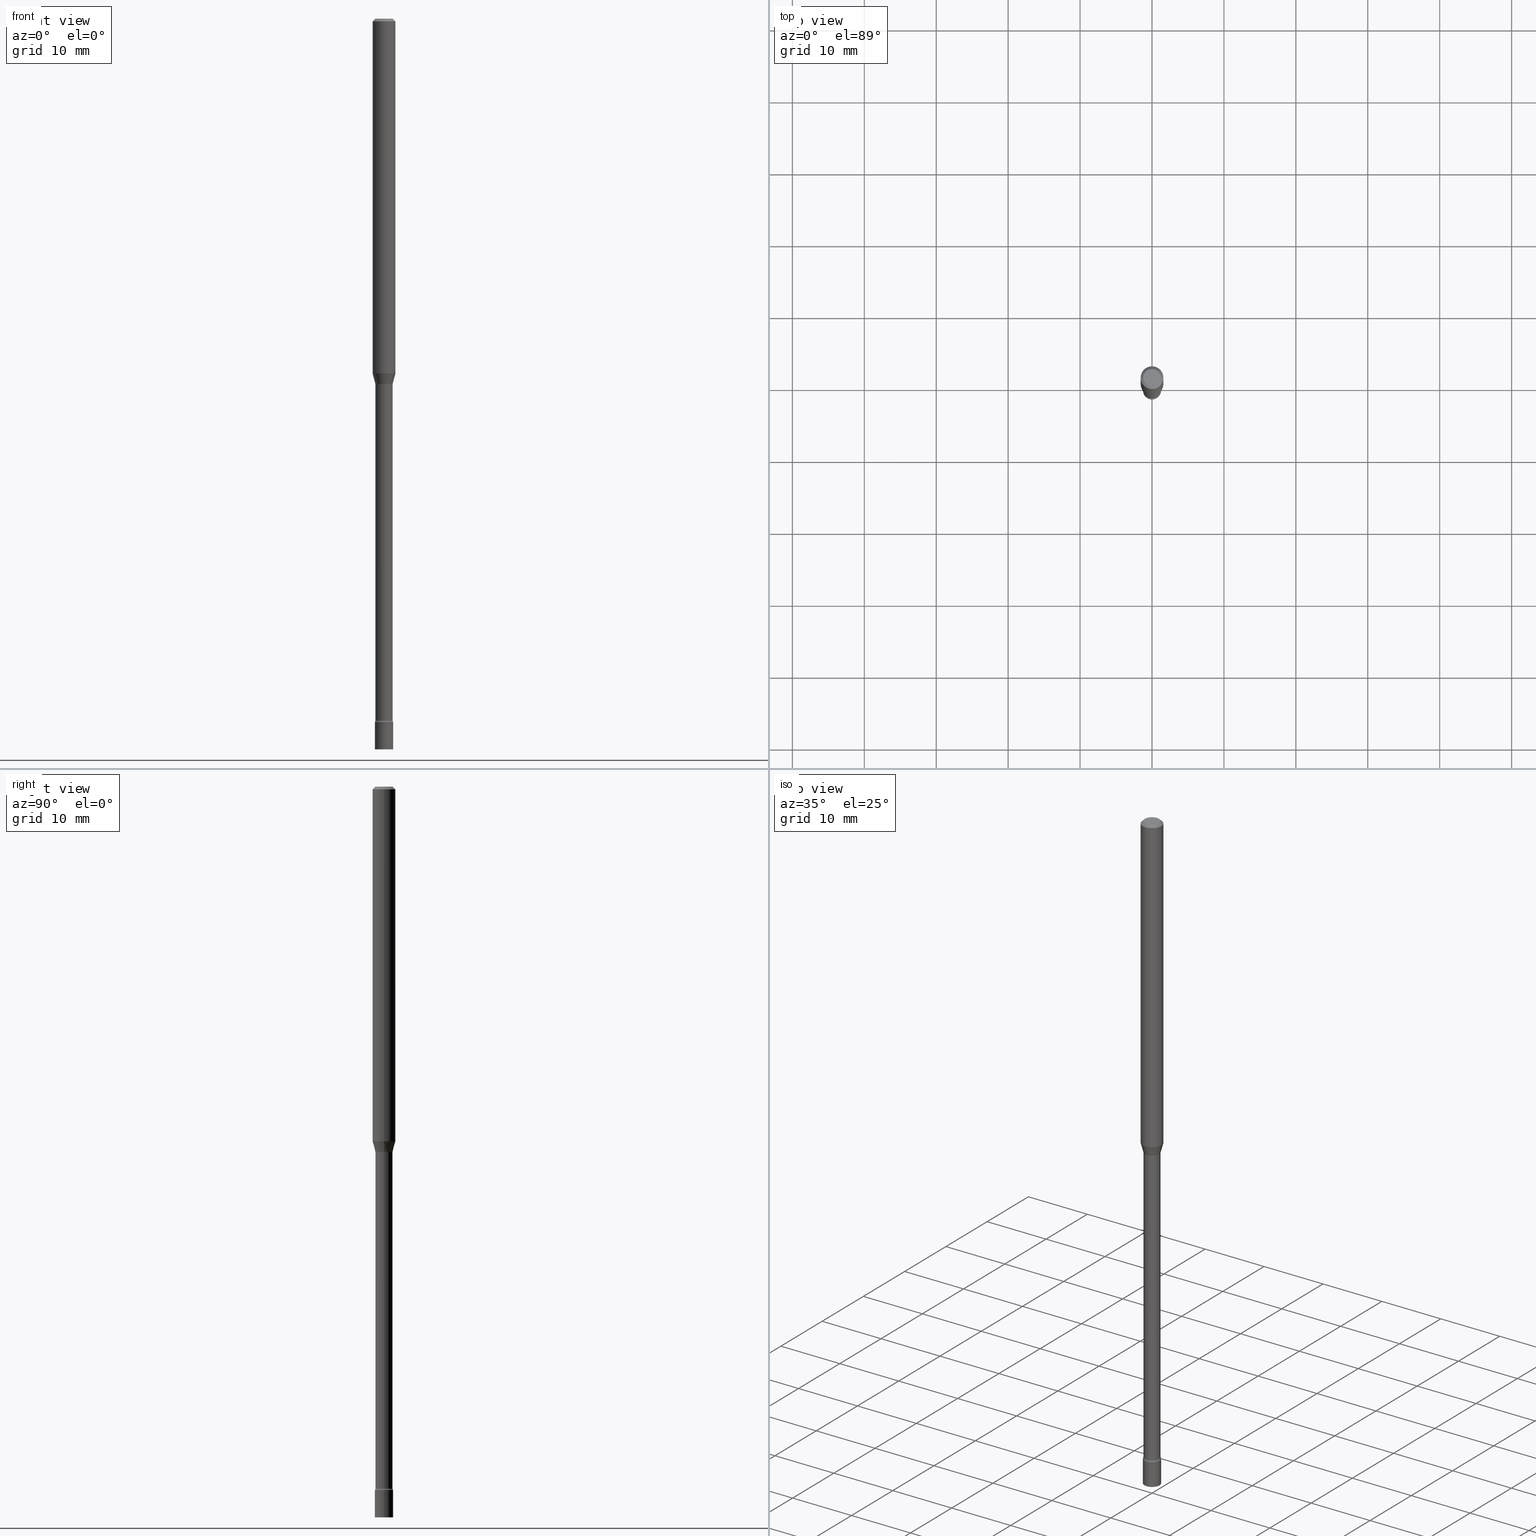
[diagram: canonical four-view strip — front | top / right | iso, engineering-drawing reading convention]
A machine part, canonical four-view strip (front | top / right | iso — engineering-drawing reading convention). The complete STEP part file that produces these views, byte-faithful:
ISO-10303-21;
HEADER;
FILE_DESCRIPTION (( 'STEP AP203' ),
    '1' );
FILE_NAME ('09758.STEP',
    '2024-03-09T01:44:52',
    ( '' ),
    ( '' ),
    'SwSTEP 2.0',
    'SolidWorks 2023',
    '' );
FILE_SCHEMA (( 'CONFIG_CONTROL_DESIGN' ));
ENDSEC;

DATA;
#1 = DIRECTION ( 'NONE',  ( 1.000000000000000000, -6.982962677686269077E-15, 0.000000000000000000 ) ) ;
#2 = CYLINDRICAL_SURFACE ( 'NONE', #110, 0.04700000000000017358 ) ;
#3 = ORIENTED_EDGE ( 'NONE', *, *, #217, .T. ) ;
#4 = EDGE_CURVE ( 'NONE', #424, #44, #321, .T. ) ;
#5 = CARTESIAN_POINT ( 'NONE',  ( 4.895766893511867445E-29, -6.989857611264368100E-15, -2.001974787463810745 ) ) ;
#6 = VERTEX_POINT ( 'NONE', #483 ) ;
#7 = AXIS2_PLACEMENT_3D ( 'NONE', #196, #78, #438 ) ;
#8 = VECTOR ( 'NONE', #337, 39.37007874015748143 ) ;
#9 = DIRECTION ( 'NONE',  ( 1.000000000000000000, -6.982962677686259611E-15, 0.000000000000000000 ) ) ;
#10 = VERTEX_POINT ( 'NONE', #76 ) ;
#11 = CARTESIAN_POINT ( 'NONE',  ( -0.04700000000000035399, -1.308187826167766793E-14, -3.841000000000001080 ) ) ;
#12 = ADVANCED_FACE ( 'NONE', ( #282 ), #412, .T. ) ;
#13 = FACE_OUTER_BOUND ( 'NONE', #16, .T. ) ;
#14 = CIRCLE ( 'NONE', #371, 0.04700000000000000705 ) ;
#15 = CIRCLE ( 'NONE', #34, 0.01499999999999987454 ) ;
#16 = EDGE_LOOP ( 'NONE', ( #199, #501, #350, #156 ) ) ;
#17 = DIRECTION ( 'NONE',  ( 1.000000000000000000, -6.982962677686267499E-15, 4.883557194083112901E-29 ) ) ;
#18 = ORIENTED_EDGE ( 'NONE', *, *, #359, .T. ) ;
#19 = ADVANCED_FACE ( 'NONE', ( #290 ), #499, .T. ) ;
#20 = DIRECTION ( 'NONE',  ( -2.445468806185136877E-29, 3.491481338843145188E-15, 1.000000000000000000 ) ) ;
#21 = VECTOR ( 'NONE', #152, 39.37007874015748143 ) ;
#22 = AXIS2_PLACEMENT_3D ( 'NONE', #208, #459, #89 ) ;
#23 = DATE_AND_TIME ( #57, #319 ) ;
#24 = PERSON_AND_ORGANIZATION ( #66, #380 ) ;
#25 = VECTOR ( 'NONE', #20, 39.37007874015748143 ) ;
#26 = ORIENTED_EDGE ( 'NONE', *, *, #308, .F. ) ;
#27 = AXIS2_PLACEMENT_3D ( 'NONE', #172, #292, #411 ) ;
#28 = ORIENTED_EDGE ( 'NONE', *, *, #314, .T. ) ;
#29 = CARTESIAN_POINT ( 'NONE',  ( -0.06250000000000000000, 4.440892098500626162E-16, -3.074334431409316114E-30 ) ) ;
#30 = CC_DESIGN_PERSON_AND_ORGANIZATION_ASSIGNMENT ( #257, #92, ( #157 ) ) ;
#31 = CARTESIAN_POINT ( 'NONE',  ( 9.415054903812776570E-29, -1.344220315454611233E-14, -3.850000000000000089 ) ) ;
#32 = CARTESIAN_POINT ( 'NONE',  ( 4.886272884993194703E-29, -6.976302683272677514E-15, -1.998092501787272823 ) ) ;
#33 = CIRCLE ( 'NONE', #395, 0.05000000000000000278 ) ;
#34 = AXIS2_PLACEMENT_3D ( 'NONE', #84, #403, #50 ) ;
#35 = FACE_OUTER_BOUND ( 'NONE', #494, .T. ) ;
#36 = CARTESIAN_POINT ( 'NONE',  ( -0.04751111260566399236, -6.638715923974330812E-15, -1.998092501787272823 ) ) ;
#37 = CARTESIAN_POINT ( 'NONE',  ( -0.06250000000000000000, 3.840629472727443437E-16, -0.01500000000000003067 ) ) ;
#38 = ORIENTED_EDGE ( 'NONE', *, *, #434, .T. ) ;
#39 = DIRECTION ( 'NONE',  ( -2.445468806185136597E-29, 3.491481338843145583E-15, 1.000000000000000000 ) ) ;
#40 = ORIENTED_EDGE ( 'NONE', *, *, #359, .F. ) ;
#41 = AXIS2_PLACEMENT_3D ( 'NONE', #458, #382, #91 ) ;
#42 = PRODUCT_DEFINITION_FORMATION_WITH_SPECIFIED_SOURCE ( 'ANY', '', #106, .NOT_KNOWN. ) ;
#43 = CARTESIAN_POINT ( 'NONE',  ( 0.06250000000000000000, -4.364351673553916694E-16, 3.047610484872459871E-30 ) ) ;
#44 = VERTEX_POINT ( 'NONE', #204 ) ;
#45 = DIRECTION ( 'NONE',  ( 1.000000000000000000, -6.982962677686269866E-15, 0.000000000000000000 ) ) ;
#46 = CC_DESIGN_PERSON_AND_ORGANIZATION_ASSIGNMENT ( #55, #470, ( #42 ) ) ;
#47 = CARTESIAN_POINT ( 'NONE',  ( 0.06250000000000000000, -4.888073874380389458E-16, -0.01500000000000003067 ) ) ;
#48 = DIRECTION ( 'NONE',  ( 1.000000000000000000, 0.000000000000000000, 0.000000000000000000 ) ) ;
#49 = AXIS2_PLACEMENT_3D ( 'NONE', #362, #390, #158 ) ;
#50 = DIRECTION ( 'NONE',  ( -1.000000000000000000, 7.105427357601050768E-15, 0.000000000000000000 ) ) ;
#51 = DIRECTION ( 'NONE',  ( 1.000000000000000000, -6.982962677686259611E-15, 4.883557194083110659E-29 ) ) ;
#52 = ORIENTED_EDGE ( 'NONE', *, *, #381, .T. ) ;
#53 = APPROVAL_STATUS ( 'not_yet_approved' ) ;
#54 = DIRECTION ( 'NONE',  ( -2.445468806185136877E-29, 3.491481338843145188E-15, 1.000000000000000000 ) ) ;
#55 = PERSON_AND_ORGANIZATION ( #66, #380 ) ;
#56 = AXIS2_PLACEMENT_3D ( 'NONE', #317, #444, #103 ) ;
#57 = CALENDAR_DATE ( 2024, 8, 3 ) ;
#58 = CARTESIAN_POINT ( 'NONE',  ( 0.04751111260566399236, -7.308071009373378853E-15, -1.998092501787272823 ) ) ;
#59 = CALENDAR_DATE ( 2024, 8, 3 ) ;
#60 = ORIENTED_EDGE ( 'NONE', *, *, #239, .F. ) ;
#61 = PERSON_AND_ORGANIZATION ( #66, #380 ) ;
#62 = CIRCLE ( 'NONE', #431, 0.04751111260566399236 ) ;
#63 = AXIS2_PLACEMENT_3D ( 'NONE', #361, #456, #116 ) ;
#64 = ORIENTED_EDGE ( 'NONE', *, *, #313, .F. ) ;
#65 = CC_DESIGN_DATE_AND_TIME_ASSIGNMENT ( #23, #139, ( #157 ) ) ;
#66 = PERSON ( 'UNSPECIFIED', 'UNSPECIFIED', 'UNSPECIFIED', ('UNSPECIFIED'), ('UNSPECIFIED'), ('UNSPECIFIED') ) ;
#67 = DIRECTION ( 'NONE',  ( 1.000000000000000000, -6.982962677686267499E-15, 4.876176775795935793E-29 ) ) ;
#68 = ORIENTED_EDGE ( 'NONE', *, *, #212, .T. ) ;
#69 = DIRECTION ( 'NONE',  ( 1.000000000000000000, -6.982962677686267499E-15, 4.876176775795936353E-29 ) ) ;
#70 = PLANE ( 'NONE',  #111 ) ;
#71 = ADVANCED_FACE ( 'NONE', ( #345 ), #428, .T. ) ;
#72 = ADVANCED_FACE ( 'NONE', ( #134 ), #447, .F. ) ;
#73 = CIRCLE ( 'NONE', #457, 0.06250000000000000000 ) ;
#74 = FACE_OUTER_BOUND ( 'NONE', #185, .T. ) ;
#75 = EDGE_LOOP ( 'NONE', ( #455, #288, #68, #60 ) ) ;
#76 = CARTESIAN_POINT ( 'NONE',  ( 0.05000000000000000278, -1.379135128843042409E-14, -3.850000000000000089 ) ) ;
#77 = DIRECTION ( 'NONE',  ( 1.000000000000000000, -6.982962677686262766E-15, 0.000000000000000000 ) ) ;
#78 = DIRECTION ( 'NONE',  ( -2.445468806185136597E-29, 3.491481338843145583E-15, 1.000000000000000000 ) ) ;
#79 = VERTEX_POINT ( 'NONE', #171 ) ;
#80 = CIRCLE ( 'NONE', #128, 0.04700000000000035399 ) ;
#81 = ADVANCED_FACE ( 'NONE', ( #127 ), #213, .T. ) ;
#82 = CARTESIAN_POINT ( 'NONE',  ( -0.05000000000000000278, -1.334879288707929850E-14, -4.000000000000000000 ) ) ;
#83 = DIRECTION ( 'NONE',  ( 1.000000000000000000, -6.982962677686265922E-15, 4.876176775795935793E-29 ) ) ;
#84 = CARTESIAN_POINT ( 'NONE',  ( -0.06200000000000023548, -1.297024332632526118E-14, -3.841000000000001080 ) ) ;
#85 = ORIENTED_EDGE ( 'NONE', *, *, #268, .T. ) ;
#86 = EDGE_CURVE ( 'NONE', #392, #263, #251, .T. ) ;
#87 = CARTESIAN_POINT ( 'NONE',  ( 4.895766893511867445E-29, -6.989857611264368100E-15, -2.001974787463810745 ) ) ;
#88 = AXIS2_PLACEMENT_3D ( 'NONE', #107, #275, #298 ) ;
#89 = DIRECTION ( 'NONE',  ( 1.000000000000000000, -6.982962677686267499E-15, 4.876176775795936353E-29 ) ) ;
#90 = ORIENTED_EDGE ( 'NONE', *, *, #4, .T. ) ;
#91 = DIRECTION ( 'NONE',  ( -1.000000000000000000, 6.982962677686265922E-15, -4.876176775795935793E-29 ) ) ;
#92 = PERSON_AND_ORGANIZATION_ROLE ( 'classification_officer' ) ;
#93 = DIRECTION ( 'NONE',  ( -1.000000000000000000, 6.982962677686266711E-15, 0.000000000000000000 ) ) ;
#94 = ADVANCED_FACE ( 'NONE', ( #175 ), #173, .T. ) ;
#95 = CONICAL_SURFACE ( 'NONE', #354, 0.06250000000000000000, 0.7853981633974483900 ) ;
#96 = ORIENTED_EDGE ( 'NONE', *, *, #148, .F. ) ;
#97 = SECURITY_CLASSIFICATION_LEVEL ( 'unclassified' ) ;
#98 = APPROVAL_ROLE ( '' ) ;
#99 = DIRECTION ( 'NONE',  ( 1.000000000000000000, -6.982962677686259611E-15, 4.883557194083110659E-29 ) ) ;
#100 = ADVANCED_FACE ( 'NONE', ( #145 ), #118, .T. ) ;
#101 = AXIS2_PLACEMENT_3D ( 'NONE', #454, #463, #99 ) ;
#102 = LOCAL_TIME ( 20, 44, 52.00000000000000000, #211 ) ;
#103 = DIRECTION ( 'NONE',  ( 1.000000000000000000, -6.982962677686267499E-15, 4.876176775795935793E-29 ) ) ;
#104 = DIRECTION ( 'NONE',  ( 1.000000000000000000, -6.982962677686269866E-15, 0.000000000000000000 ) ) ;
#105 = EDGE_CURVE ( 'NONE', #368, #10, #182, .T. ) ;
#106 = PRODUCT ( '09758', '09758', '', ( #125 ) ) ;
#107 = CARTESIAN_POINT ( 'NONE',  ( 9.415054903812776570E-29, -1.344220315454611233E-14, -3.850000000000000089 ) ) ;
#108 = CARTESIAN_POINT ( 'NONE',  ( -0.05000000000000000278, -1.334879288707929850E-14, -3.850000000000000089 ) ) ;
#109 = UNCERTAINTY_MEASURE_WITH_UNIT (LENGTH_MEASURE( 1.000000000000000082E-05 ), #500, 'distance_accuracy_value', 'NONE');
#110 = AXIS2_PLACEMENT_3D ( 'NONE', #269, #322, #67 ) ;
#111 = AXIS2_PLACEMENT_3D ( 'NONE', #228, #398, #192 ) ;
#112 = MANIFOLD_SOLID_BREP ( 'Body-Move/Copy2[1]', #511 ) ;
#113 = DIRECTION ( 'NONE',  ( -2.445468806185136597E-29, 3.491481338843145583E-15, 1.000000000000000000 ) ) ;
#114 = CARTESIAN_POINT ( 'NONE',  ( 0.04700000000000035399, -1.373897906834778213E-14, -3.841000000000001080 ) ) ;
#115 = CC_DESIGN_PERSON_AND_ORGANIZATION_ASSIGNMENT ( #505, #180, ( #425 ) ) ;
#116 = DIRECTION ( 'NONE',  ( -1.000000000000000000, 7.105427357600982137E-15, 0.000000000000000000 ) ) ;
#117 = EDGE_LOOP ( 'NONE', ( #399, #490 ) ) ;
#118 = CONICAL_SURFACE ( 'NONE', #338, 0.04751111260566399236, 0.2617993877991497409 ) ;
#119 = LOCAL_TIME ( 20, 44, 52.00000000000000000, #302 ) ;
#120 =( NAMED_UNIT ( * ) PLANE_ANGLE_UNIT ( ) SI_UNIT ( $, .RADIAN. ) );
#121 = ORIENTED_EDGE ( 'NONE', *, *, #313, .T. ) ;
#122 = CARTESIAN_POINT ( 'NONE',  ( -0.04749999999999999362, 3.578768372314209027E-16, -2.891391092787141902E-17 ) ) ;
#123 = ORIENTED_EDGE ( 'NONE', *, *, #267, .F. ) ;
#124 = EDGE_CURVE ( 'NONE', #266, #44, #404, .T. ) ;
#125 = MECHANICAL_CONTEXT ( 'NONE', #397, 'mechanical' ) ;
#126 = ORIENTED_EDGE ( 'NONE', *, *, #267, .T. ) ;
#127 = FACE_OUTER_BOUND ( 'NONE', #153, .T. ) ;
#128 = AXIS2_PLACEMENT_3D ( 'NONE', #177, #198, #469 ) ;
#129 = LINE ( 'NONE', #43, #495 ) ;
#130 = VECTOR ( 'NONE', #332, 39.37007874015748143 ) ;
#131 = EDGE_LOOP ( 'NONE', ( #482, #471, #376, #3 ) ) ;
#132 = DIRECTION ( 'NONE',  ( 2.445468806185136597E-29, -3.491481338843145583E-15, -1.000000000000000000 ) ) ;
#133 = APPROVAL_DATE_TIME ( #254, #304 ) ;
#134 = FACE_OUTER_BOUND ( 'NONE', #289, .T. ) ;
#135 = ADVANCED_FACE ( 'NONE', ( #439 ), #384, .F. ) ;
#136 = PERSON_AND_ORGANIZATION ( #66, #380 ) ;
#137 = CALENDAR_DATE ( 2024, 8, 3 ) ;
#138 = AXIS2_PLACEMENT_3D ( 'NONE', #234, #360, #9 ) ;
#139 = DATE_TIME_ROLE ( 'classification_date' ) ;
#140 = ADVANCED_FACE ( 'NONE', ( #249 ), #307, .T. ) ;
#141 = DIRECTION ( 'NONE',  ( 2.445468806185136597E-29, -3.491481338843145583E-15, -1.000000000000000000 ) ) ;
#142 = PERSON_AND_ORGANIZATION ( #66, #380 ) ;
#143 = DIRECTION ( 'NONE',  ( -1.000000000000000000, 6.982962677686266711E-15, 0.000000000000000000 ) ) ;
#144 = EDGE_LOOP ( 'NONE', ( #183, #226, #209, #40 ) ) ;
#145 = FACE_OUTER_BOUND ( 'NONE', #448, .T. ) ;
#146 = CARTESIAN_POINT ( 'NONE',  ( 9.781875224740546387E-29, -1.396592535537258233E-14, -4.000000000000000000 ) ) ;
#147 = ORIENTED_EDGE ( 'NONE', *, *, #224, .F. ) ;
#148 = EDGE_CURVE ( 'NONE', #392, #327, #80, .T. ) ;
#149 = DIRECTION ( 'NONE',  ( -6.982962677686266711E-15, -1.000000000000000000, 3.491481338843145583E-15 ) ) ;
#150 = EDGE_LOOP ( 'NONE', ( #96, #38, #121, #232 ) ) ;
#151 = CARTESIAN_POINT ( 'NONE',  ( 3.668203209277712094E-31, -5.237222008264728876E-17, -0.01500000000000003067 ) ) ;
#152 = DIRECTION ( 'NONE',  ( -2.445468806185136877E-29, 3.491481338843145188E-15, 1.000000000000000000 ) ) ;
#153 = EDGE_LOOP ( 'NONE', ( #123, #323 ) ) ;
#154 = CARTESIAN_POINT ( 'NONE',  ( 7.070806723891919892E-46, -1.009523804376275404E-31, -2.891391092786900929E-17 ) ) ;
#155 = AXIS2_PLACEMENT_3D ( 'NONE', #356, #520, #77 ) ;
#156 = ORIENTED_EDGE ( 'NONE', *, *, #105, .F. ) ;
#157 = SECURITY_CLASSIFICATION ( '', '', #97 ) ;
#158 = DIRECTION ( 'NONE',  ( 1.000000000000000000, -6.982962677686259611E-15, 0.000000000000000000 ) ) ;
#159 = VERTEX_POINT ( 'NONE', #227 ) ;
#160 = ADVANCED_FACE ( 'NONE', ( #394 ), #278, .F. ) ;
#161 = ORIENTED_EDGE ( 'NONE', *, *, #405, .F. ) ;
#162 = LINE ( 'NONE', #375, #8 ) ;
#163 = ORIENTED_EDGE ( 'NONE', *, *, #308, .T. ) ;
#164 = LENGTH_MEASURE_WITH_UNIT ( LENGTH_MEASURE( 0.02539999999999999897 ), #325 );
#165 = EDGE_CURVE ( 'NONE', #327, #346, #374, .T. ) ;
#166 = CIRCLE ( 'NONE', #364, 0.04751111260566399236 ) ;
#167 = CARTESIAN_POINT ( 'NONE',  ( 0.000000000000000000, 0.000000000000000000, 0.000000000000000000 ) ) ;
#168 = VERTEX_POINT ( 'NONE', #47 ) ;
#169 = DIRECTION ( 'NONE',  ( 1.000000000000000000, -6.982962677686269077E-15, 0.000000000000000000 ) ) ;
#170 = CARTESIAN_POINT ( 'NONE',  ( -0.04751111260566399236, -6.487809206340909859E-15, -1.998092501787272823 ) ) ;
#171 = CARTESIAN_POINT ( 'NONE',  ( -0.06250000000000000000, -2.972592749470036882E-15, -0.01500000000000003067 ) ) ;
#172 = CARTESIAN_POINT ( 'NONE',  ( 4.895766893511867445E-29, -6.989857611264368100E-15, -2.001974787463810745 ) ) ;
#173 = CYLINDRICAL_SURFACE ( 'NONE', #246, 0.05000000000000000278 ) ;
#174 = APPROVAL_PERSON_ORGANIZATION ( #142, #391, #301 ) ;
#175 = FACE_OUTER_BOUND ( 'NONE', #409, .T. ) ;
#176 = EDGE_CURVE ( 'NONE', #10, #368, #189, .T. ) ;
#177 = CARTESIAN_POINT ( 'NONE',  ( 9.393045684557111749E-29, -1.341077982249652526E-14, -3.841000000000001080 ) ) ;
#178 = DIRECTION ( 'NONE',  ( -2.445468806185136597E-29, 3.491481338843145583E-15, 1.000000000000000000 ) ) ;
#179 = AXIS2_PLACEMENT_3D ( 'NONE', #206, #324, #169 ) ;
#180 = PERSON_AND_ORGANIZATION_ROLE ( 'creator' ) ;
#181 = AXIS2_PLACEMENT_3D ( 'NONE', #331, #333, #83 ) ;
#182 = CIRCLE ( 'NONE', #363, 0.05000000000000000278 ) ;
#183 = ORIENTED_EDGE ( 'NONE', *, *, #334, .F. ) ;
#184 = DIRECTION ( 'NONE',  ( -2.445468806185136597E-29, 3.491481338843145583E-15, 1.000000000000000000 ) ) ;
#185 = EDGE_LOOP ( 'NONE', ( #328, #64 ) ) ;
#186 = DIRECTION ( 'NONE',  ( -2.445468806185136877E-29, 3.491481338843145188E-15, 1.000000000000000000 ) ) ;
#187 = EDGE_LOOP ( 'NONE', ( #28, #435, #489, #243 ) ) ;
#188 = DIRECTION ( 'NONE',  ( 1.000000000000000000, -6.982962677686269077E-15, 0.000000000000000000 ) ) ;
#189 = CIRCLE ( 'NONE', #493, 0.05000000000000000278 ) ;
#190 = CARTESIAN_POINT ( 'NONE',  ( 4.749475097958652803E-29, -6.780991698557551523E-15, -1.942153212482682134 ) ) ;
#191 = CARTESIAN_POINT ( 'NONE',  ( 3.668203209277712094E-31, -5.237222008264728876E-17, -0.01500000000000003067 ) ) ;
#192 = DIRECTION ( 'NONE',  ( 1.000000000000000000, -6.982962677686265922E-15, 4.876176775795935793E-29 ) ) ;
#193 = DIRECTION ( 'NONE',  ( -0.2588190451025210725, 5.211531920934548675E-15, 0.9659258262890682012 ) ) ;
#194 = DIRECTION ( 'NONE',  ( -0.7071067811865475727, 2.468850131082257455E-15, -0.7071067811865474617 ) ) ;
#195 = PRODUCT_DEFINITION_SHAPE ( 'NONE', 'NONE',  #425 ) ;
#196 = CARTESIAN_POINT ( 'NONE',  ( 9.415054903812776570E-29, -1.344220315454611233E-14, -3.850000000000000089 ) ) ;
#197 = ADVANCED_FACE ( 'NONE', ( #437 ), #421, .T. ) ;
#198 = DIRECTION ( 'NONE',  ( -2.445468806185136597E-29, 3.491481338843145583E-15, 1.000000000000000000 ) ) ;
#199 = ORIENTED_EDGE ( 'NONE', *, *, #504, .F. ) ;
#200 = AXIS2_PLACEMENT_3D ( 'NONE', #402, #149, #388 ) ;
#201 = FACE_OUTER_BOUND ( 'NONE', #519, .T. ) ;
#202 = CYLINDRICAL_SURFACE ( 'NONE', #22, 0.05000000000000000278 ) ;
#203 = ADVANCED_FACE ( 'NONE', ( #219 ), #95, .T. ) ;
#204 = CARTESIAN_POINT ( 'NONE',  ( -0.06250000000000000000, -6.336902488707488907E-15, -1.942153212482682134 ) ) ;
#205 = CLOSED_SHELL ( 'NONE', ( #72, #241, #135, #203, #140, #100, #12, #71, #197, #507, #351, #160, #326, #443 ) ) ;
#206 = CARTESIAN_POINT ( 'NONE',  ( 4.886272884993194703E-29, -6.976302683272677514E-15, -1.998092501787272823 ) ) ;
#207 = AXIS2_PLACEMENT_3D ( 'NONE', #154, #441, #283 ) ;
#208 = CARTESIAN_POINT ( 'NONE',  ( 0.000000000000000000, 0.000000000000000000, 0.000000000000000000 ) ) ;
#209 = ORIENTED_EDGE ( 'NONE', *, *, #452, .T. ) ;
#210 = CARTESIAN_POINT ( 'NONE',  ( -0.04700000000000017358, 3.339550858072483207E-16, -2.311899492419814478E-30 ) ) ;
#211 = COORDINATED_UNIVERSAL_TIME_OFFSET ( 5, 0, .BEHIND. ) ;
#212 = EDGE_CURVE ( 'NONE', #159, #266, #261, .T. ) ;
#213 = PLANE ( 'NONE',  #41 ) ;
#214 = CALENDAR_DATE ( 2024, 8, 3 ) ;
#215 = PERSON_AND_ORGANIZATION_ROLE ( 'design_supplier' ) ;
#216 = VERTEX_POINT ( 'NONE', #82 ) ;
#217 = EDGE_CURVE ( 'NONE', #445, #336, #245, .T. ) ;
#218 = APPROVAL_STATUS ( 'not_yet_approved' ) ;
#219 = FACE_OUTER_BOUND ( 'NONE', #297, .T. ) ;
#220 = ORIENTED_EDGE ( 'NONE', *, *, #381, .F. ) ;
#221 = DATE_AND_TIME ( #137, #119 ) ;
#222 = AXIS2_PLACEMENT_3D ( 'NONE', #353, #377, #464 ) ;
#223 = TOROIDAL_SURFACE ( 'NONE', #27, 0.06200000000000000649, 0.01500000000000001853 ) ;
#224 = EDGE_CURVE ( 'NONE', #432, #303, #236, .T. ) ;
#225 = CARTESIAN_POINT ( 'NONE',  ( -0.04999999999999992645, -1.308693178666606192E-14, -3.850000000000000089 ) ) ;
#226 = ORIENTED_EDGE ( 'NONE', *, *, #239, .T. ) ;
#227 = CARTESIAN_POINT ( 'NONE',  ( 0.04751111260566399236, -7.308071009373378853E-15, -1.998092501787272823 ) ) ;
#228 = CARTESIAN_POINT ( 'NONE',  ( 3.491481338844074565E-16, 0.04999999999998656214, -3.850000000000000089 ) ) ;
#229 = CIRCLE ( 'NONE', #200, 0.01499999999999987454 ) ;
#230 = AXIS2_PLACEMENT_3D ( 'NONE', #367, #446, #291 ) ;
#231 = DIRECTION ( 'NONE',  ( 1.000000000000000000, -6.982962677686254878E-15, 0.000000000000000000 ) ) ;
#232 = ORIENTED_EDGE ( 'NONE', *, *, #252, .F. ) ;
#233 = EDGE_CURVE ( 'NONE', #6, #10, #497, .T. ) ;
#234 = CARTESIAN_POINT ( 'NONE',  ( 0.06200000000000000649, -7.422801297280916762E-15, -2.001974787463810745 ) ) ;
#235 = LINE ( 'NONE', #248, #130 ) ;
#236 = CIRCLE ( 'NONE', #466, 0.04749999999999999362 ) ;
#237 = CIRCLE ( 'NONE', #63, 0.01500000000000001853 ) ;
#238 = PLANE ( 'NONE',  #230 ) ;
#239 = EDGE_CURVE ( 'NONE', #44, #266, #256, .T. ) ;
#240 = EDGE_CURVE ( 'NONE', #168, #79, #73, .T. ) ;
#241 = ADVANCED_FACE ( 'NONE', ( #475 ), #488, .T. ) ;
#242 = APPLICATION_PROTOCOL_DEFINITION ( 'international standard', 'config_control_design', 1994, #397 ) ;
#243 = ORIENTED_EDGE ( 'NONE', *, *, #165, .F. ) ;
#244 = DIRECTION ( 'NONE',  ( -2.445468806185136597E-29, 3.491481338843145583E-15, 1.000000000000000000 ) ) ;
#245 = CIRCLE ( 'NONE', #88, 0.05000000000000000278 ) ;
#246 = AXIS2_PLACEMENT_3D ( 'NONE', #503, #178, #69 ) ;
#247 = AXIS2_PLACEMENT_3D ( 'NONE', #151, #315, #481 ) ;
#248 = CARTESIAN_POINT ( 'NONE',  ( -0.05000000000000000278, 3.552713678800501127E-16, -2.459467545127453311E-30 ) ) ;
#249 = FACE_OUTER_BOUND ( 'NONE', #510, .T. ) ;
#250 = ORIENTED_EDGE ( 'NONE', *, *, #452, .F. ) ;
#251 = LINE ( 'NONE', #210, #25 ) ;
#252 = EDGE_CURVE ( 'NONE', #327, #445, #229, .T. ) ;
#253 = EDGE_CURVE ( 'NONE', #346, #263, #14, .T. ) ;
#254 = DATE_AND_TIME ( #515, #265 ) ;
#255 = PERSON_AND_ORGANIZATION ( #66, #380 ) ;
#256 = CIRCLE ( 'NONE', #155, 0.06250000000000000000 ) ;
#257 = PERSON_AND_ORGANIZATION ( #66, #380 ) ;
#258 = CC_DESIGN_APPROVAL ( #304, ( #425 ) ) ;
#259 = CARTESIAN_POINT ( 'NONE',  ( 3.668203209277712094E-31, -5.237222008264728876E-17, -0.01500000000000003067 ) ) ;
#260 = PRODUCT_RELATED_PRODUCT_CATEGORY ( 'detail', '', ( #106 ) ) ;
#261 = LINE ( 'NONE', #58, #287 ) ;
#262 = ORIENTED_EDGE ( 'NONE', *, *, #334, .T. ) ;
#263 = VERTEX_POINT ( 'NONE', #486 ) ;
#264 = CIRCLE ( 'NONE', #138, 0.01500000000000001853 ) ;
#265 = LOCAL_TIME ( 20, 44, 52.00000000000000000, #296 ) ;
#266 = VERTEX_POINT ( 'NONE', #276 ) ;
#267 = EDGE_CURVE ( 'NONE', #6, #216, #33, .T. ) ;
#268 = EDGE_CURVE ( 'NONE', #159, #346, #264, .T. ) ;
#269 = CARTESIAN_POINT ( 'NONE',  ( 0.000000000000000000, 0.000000000000000000, 0.000000000000000000 ) ) ;
#270 = ORIENTED_EDGE ( 'NONE', *, *, #148, .T. ) ;
#271 = DIRECTION ( 'NONE',  ( -2.445468806185136597E-29, 3.491481338843145583E-15, 1.000000000000000000 ) ) ;
#272 = DIRECTION ( 'NONE',  ( -2.445468806185136597E-29, 3.491481338843145583E-15, 1.000000000000000000 ) ) ;
#273 = ORIENTED_EDGE ( 'NONE', *, *, #342, .F. ) ;
#274 = DIRECTION ( 'NONE',  ( 1.000000000000000000, -6.982962677686262766E-15, 0.000000000000000000 ) ) ;
#275 = DIRECTION ( 'NONE',  ( -2.445468806185136597E-29, 3.491481338843145583E-15, 1.000000000000000000 ) ) ;
#276 = CARTESIAN_POINT ( 'NONE',  ( 0.06250000000000000000, -7.217426865912943982E-15, -1.942153212482682134 ) ) ;
#277 = EDGE_CURVE ( 'NONE', #216, #6, #414, .T. ) ;
#278 = TOROIDAL_SURFACE ( 'NONE', #430, 0.06200000000000023548, 0.01499999999999987975 ) ;
#279 = CIRCLE ( 'NONE', #247, 0.06250000000000000000 ) ;
#280 = DIRECTION ( 'NONE',  ( -2.445468806185136597E-29, 3.491481338843145583E-15, 1.000000000000000000 ) ) ;
#281 = ORIENTED_EDGE ( 'NONE', *, *, #176, .F. ) ;
#282 = FACE_OUTER_BOUND ( 'NONE', #75, .T. ) ;
#283 = DIRECTION ( 'NONE',  ( 1.000000000000000000, -6.982962677686267499E-15, 4.876681293081646444E-29 ) ) ;
#284 = DIRECTION ( 'NONE',  ( 1.000000000000000000, -6.982962677686269077E-15, 0.000000000000000000 ) ) ;
#285 = ORIENTED_EDGE ( 'NONE', *, *, #509, .F. ) ;
#286 = CARTESIAN_POINT ( 'NONE',  ( 9.393045684557111749E-29, -1.341077982249652526E-14, -3.841000000000001080 ) ) ;
#287 = VECTOR ( 'NONE', #450, 39.37007874015748143 ) ;
#288 = ORIENTED_EDGE ( 'NONE', *, *, #342, .T. ) ;
#289 = EDGE_LOOP ( 'NONE', ( #273, #52, #293, #514 ) ) ;
#290 = FACE_OUTER_BOUND ( 'NONE', #117, .T. ) ;
#291 = DIRECTION ( 'NONE',  ( -1.000000000000000000, 6.982962677686265922E-15, -4.876176775795935793E-29 ) ) ;
#292 = DIRECTION ( 'NONE',  ( -2.445468806185136597E-29, 3.491481338843145583E-15, 1.000000000000000000 ) ) ;
#293 = ORIENTED_EDGE ( 'NONE', *, *, #460, .T. ) ;
#294 = CIRCLE ( 'NONE', #49, 0.04700000000000035399 ) ;
#295 = DIRECTION ( 'NONE',  ( -2.445468806185136597E-29, 3.491481338843145583E-15, 1.000000000000000000 ) ) ;
#296 = COORDINATED_UNIVERSAL_TIME_OFFSET ( 5, 0, .BEHIND. ) ;
#297 = EDGE_LOOP ( 'NONE', ( #26, #373, #316, #370 ) ) ;
#298 = DIRECTION ( 'NONE',  ( 1.000000000000000000, -6.982962677686254878E-15, 0.000000000000000000 ) ) ;
#299 = DIMENSIONAL_EXPONENTS ( 1.000000000000000000, 0.000000000000000000, 0.000000000000000000, 0.000000000000000000, 0.000000000000000000, 0.000000000000000000, 0.000000000000000000 ) ;
#300 = AXIS2_PLACEMENT_3D ( 'NONE', #190, #479, #274 ) ;
#301 = APPROVAL_ROLE ( '' ) ;
#302 = COORDINATED_UNIVERSAL_TIME_OFFSET ( 5, 0, .BEHIND. ) ;
#303 = VERTEX_POINT ( 'NONE', #440 ) ;
#304 = APPROVAL ( #53, 'UNSPECIFIED' ) ;
#305 = CC_DESIGN_APPROVAL ( #386, ( #157 ) ) ;
#306 = DIRECTION ( 'NONE',  ( 1.000000000000000000, -6.982962677686254878E-15, 0.000000000000000000 ) ) ;
#307 = CYLINDRICAL_SURFACE ( 'NONE', #318, 0.06250000000000000000 ) ;
#308 = EDGE_CURVE ( 'NONE', #303, #432, #329, .T. ) ;
#309 = CARTESIAN_POINT ( 'NONE',  ( 9.781875224740546387E-29, -1.396592535537258233E-14, -4.000000000000000000 ) ) ;
#310 = EDGE_LOOP ( 'NONE', ( #220, #161, #85, #472 ) ) ;
#311 = DIRECTION ( 'NONE',  ( 1.000000000000000000, -6.982962677686254878E-15, 0.000000000000000000 ) ) ;
#312 = CARTESIAN_POINT ( 'NONE',  ( 9.415054903812776570E-29, -1.344220315454611233E-14, -3.850000000000000089 ) ) ;
#313 = EDGE_CURVE ( 'NONE', #336, #445, #512, .T. ) ;
#314 = EDGE_CURVE ( 'NONE', #327, #392, #294, .T. ) ;
#315 = DIRECTION ( 'NONE',  ( -2.445468806185136597E-29, 3.491481338843145583E-15, 1.000000000000000000 ) ) ;
#316 = ORIENTED_EDGE ( 'NONE', *, *, #240, .T. ) ;
#317 = CARTESIAN_POINT ( 'NONE',  ( 0.000000000000000000, 0.000000000000000000, 0.000000000000000000 ) ) ;
#318 = AXIS2_PLACEMENT_3D ( 'NONE', #476, #427, #506 ) ;
#319 = LOCAL_TIME ( 20, 44, 52.00000000000000000, #418 ) ;
#320 = ORIENTED_EDGE ( 'NONE', *, *, #240, .F. ) ;
#321 = LINE ( 'NONE', #36, #347 ) ;
#322 = DIRECTION ( 'NONE',  ( -2.445468806185136597E-29, 3.491481338843145583E-15, 1.000000000000000000 ) ) ;
#323 = ORIENTED_EDGE ( 'NONE', *, *, #277, .F. ) ;
#324 = DIRECTION ( 'NONE',  ( -2.445468806185136597E-29, 3.491481338843145583E-15, 1.000000000000000000 ) ) ;
#325 =( LENGTH_UNIT ( ) NAMED_UNIT ( * ) SI_UNIT ( $, .METRE. ) );
#326 = ADVANCED_FACE ( 'NONE', ( #35 ), #2, .T. ) ;
#327 = VERTEX_POINT ( 'NONE', #114 ) ;
#328 = ORIENTED_EDGE ( 'NONE', *, *, #217, .F. ) ;
#329 = CIRCLE ( 'NONE', #207, 0.04749999999999999362 ) ;
#330 = APPROVAL_PERSON_ORGANIZATION ( #136, #386, #98 ) ;
#331 = CARTESIAN_POINT ( 'NONE',  ( 9.415054903812776570E-29, -1.344220315454611233E-14, -3.850000000000000089 ) ) ;
#332 = DIRECTION ( 'NONE',  ( -2.445468806185136877E-29, 3.491481338843145188E-15, 1.000000000000000000 ) ) ;
#333 = DIRECTION ( 'NONE',  ( -2.438088387897960049E-29, 3.491481338843145188E-15, 1.000000000000000000 ) ) ;
#334 = EDGE_CURVE ( 'NONE', #44, #79, #433, .T. ) ;
#335 = CARTESIAN_POINT ( 'NONE',  ( 4.895766893511867445E-29, -6.989857611264368100E-15, -2.001974787463810745 ) ) ;
#336 = VERTEX_POINT ( 'NONE', #225 ) ;
#337 = DIRECTION ( 'NONE',  ( 0.7071067811865475727, -7.319954787623256045E-15, -0.7071067811865474617 ) ) ;
#338 = AXIS2_PLACEMENT_3D ( 'NONE', #393, #358, #1 ) ;
#339 = ORIENTED_EDGE ( 'NONE', *, *, #405, .T. ) ;
#340 =( GEOMETRIC_REPRESENTATION_CONTEXT ( 3 ) GLOBAL_UNCERTAINTY_ASSIGNED_CONTEXT ( ( #109 ) ) GLOBAL_UNIT_ASSIGNED_CONTEXT ( ( #500, #120, #372 ) ) REPRESENTATION_CONTEXT ( 'NONE', 'WORKASPACE' ) );
#341 = DATE_TIME_ROLE ( 'creation_date' ) ;
#342 = EDGE_CURVE ( 'NONE', #424, #159, #62, .T. ) ;
#343 = PERSON_AND_ORGANIZATION_ROLE ( 'design_owner' ) ;
#344 = CARTESIAN_POINT ( 'NONE',  ( 7.070806723891919892E-46, -1.009523804376275404E-31, -2.891391092786900929E-17 ) ) ;
#345 = FACE_OUTER_BOUND ( 'NONE', #144, .T. ) ;
#346 = VERTEX_POINT ( 'NONE', #355 ) ;
#347 = VECTOR ( 'NONE', #193, 39.37007874015748143 ) ;
#348 = VECTOR ( 'NONE', #186, 39.37007874015748143 ) ;
#349 = COORDINATED_UNIVERSAL_TIME_OFFSET ( 5, 0, .BEHIND. ) ;
#350 = ORIENTED_EDGE ( 'NONE', *, *, #233, .T. ) ;
#351 = ADVANCED_FACE ( 'NONE', ( #74 ), #70, .F. ) ;
#352 = CARTESIAN_POINT ( 'NONE',  ( 3.668203209277712094E-31, -5.237222008264728876E-17, -0.01500000000000003067 ) ) ;
#353 = CARTESIAN_POINT ( 'NONE',  ( 0.000000000000000000, 0.000000000000000000, 0.000000000000000000 ) ) ;
#354 = AXIS2_PLACEMENT_3D ( 'NONE', #259, #132, #93 ) ;
#355 = CARTESIAN_POINT ( 'NONE',  ( 0.04700000000000000705, -7.318056857115623393E-15, -2.001974787463810745 ) ) ;
#356 = CARTESIAN_POINT ( 'NONE',  ( 4.749475097958652803E-29, -6.780991698557551523E-15, -1.942153212482682134 ) ) ;
#357 = ORIENTED_EDGE ( 'NONE', *, *, #224, .T. ) ;
#358 = DIRECTION ( 'NONE',  ( -2.445468806185136597E-29, 3.491481338843145583E-15, 1.000000000000000000 ) ) ;
#359 = EDGE_CURVE ( 'NONE', #79, #168, #279, .T. ) ;
#360 = DIRECTION ( 'NONE',  ( -6.982962677686266711E-15, -1.000000000000000000, 3.491481338843145583E-15 ) ) ;
#361 = CARTESIAN_POINT ( 'NONE',  ( -0.06200000000000000649, -6.549321115093105594E-15, -2.001974787463810745 ) ) ;
#362 = CARTESIAN_POINT ( 'NONE',  ( 9.393045684557111749E-29, -1.341077982249652526E-14, -3.841000000000001080 ) ) ;
#363 = AXIS2_PLACEMENT_3D ( 'NONE', #312, #480, #311 ) ;
#364 = AXIS2_PLACEMENT_3D ( 'NONE', #416, #492, #284 ) ;
#365 = ORIENTED_EDGE ( 'NONE', *, *, #124, .T. ) ;
#366 = ORIENTED_EDGE ( 'NONE', *, *, #212, .F. ) ;
#367 = CARTESIAN_POINT ( 'NONE',  ( 3.316907271900976096E-16, 0.04749999999999999362, -1.803023190589839165E-16 ) ) ;
#368 = VERTEX_POINT ( 'NONE', #108 ) ;
#369 = CARTESIAN_POINT ( 'NONE',  ( 0.04999999999999992645, -1.379135128843042409E-14, -3.850000000000000089 ) ) ;
#370 = ORIENTED_EDGE ( 'NONE', *, *, #379, .F. ) ;
#371 = AXIS2_PLACEMENT_3D ( 'NONE', #5, #39, #104 ) ;
#372 =( NAMED_UNIT ( * ) SI_UNIT ( $, .STERADIAN. ) SOLID_ANGLE_UNIT ( ) );
#373 = ORIENTED_EDGE ( 'NONE', *, *, #509, .T. ) ;
#374 = LINE ( 'NONE', #453, #484 ) ;
#375 = CARTESIAN_POINT ( 'NONE',  ( 0.06250000000000000000, -4.811533449433680977E-16, -0.01500000000000003067 ) ) ;
#376 = ORIENTED_EDGE ( 'NONE', *, *, #252, .T. ) ;
#377 = DIRECTION ( 'NONE',  ( -2.445468806185136597E-29, 3.491481338843145583E-15, 1.000000000000000000 ) ) ;
#378 = SHAPE_DEFINITION_REPRESENTATION ( #195, #407 ) ;
#379 = EDGE_CURVE ( 'NONE', #432, #79, #401, .T. ) ;
#380 = ORGANIZATION ( 'UNSPECIFIED', 'UNSPECIFIED', '' ) ;
#381 = EDGE_CURVE ( 'NONE', #424, #263, #237, .T. ) ;
#382 = DIRECTION ( 'NONE',  ( 2.438088387897960049E-29, -3.491481338843145188E-15, -1.000000000000000000 ) ) ;
#383 = DATE_AND_TIME ( #214, #102 ) ;
#384 = TOROIDAL_SURFACE ( 'NONE', #101, 0.06200000000000023548, 0.01499999999999987975 ) ;
#385 = CC_DESIGN_APPROVAL ( #391, ( #42 ) ) ;
#386 = APPROVAL ( #218, 'UNSPECIFIED' ) ;
#387 = ORIENTED_EDGE ( 'NONE', *, *, #379, .T. ) ;
#388 = DIRECTION ( 'NONE',  ( 1.000000000000000000, -6.982962677686326664E-15, 0.000000000000000000 ) ) ;
#389 = ORIENTED_EDGE ( 'NONE', *, *, #460, .F. ) ;
#390 = DIRECTION ( 'NONE',  ( -2.445468806185136597E-29, 3.491481338843145583E-15, 1.000000000000000000 ) ) ;
#391 = APPROVAL ( #513, 'UNSPECIFIED' ) ;
#392 = VERTEX_POINT ( 'NONE', #11 ) ;
#393 = CARTESIAN_POINT ( 'NONE',  ( 4.886272884993194703E-29, -6.976302683272677514E-15, -1.998092501787272823 ) ) ;
#394 = FACE_OUTER_BOUND ( 'NONE', #131, .T. ) ;
#395 = AXIS2_PLACEMENT_3D ( 'NONE', #309, #113, #231 ) ;
#396 = CC_DESIGN_SECURITY_CLASSIFICATION ( #157, ( #42 ) ) ;
#397 = APPLICATION_CONTEXT ( 'configuration controlled 3d designs of mechanical parts and assemblies' ) ;
#398 = DIRECTION ( 'NONE',  ( -2.438088387897960049E-29, 3.491481338843145188E-15, 1.000000000000000000 ) ) ;
#399 = ORIENTED_EDGE ( 'NONE', *, *, #176, .T. ) ;
#400 = DESIGN_CONTEXT ( 'detailed design', #423, 'design' ) ;
#401 = LINE ( 'NONE', #37, #406 ) ;
#402 = CARTESIAN_POINT ( 'NONE',  ( 0.06200000000000023548, -1.384372350851307708E-14, -3.841000000000001080 ) ) ;
#403 = DIRECTION ( 'NONE',  ( 7.105427357601001859E-15, 1.000000000000000000, -3.491481338843145583E-15 ) ) ;
#404 = CIRCLE ( 'NONE', #300, 0.06250000000000000000 ) ;
#405 = EDGE_CURVE ( 'NONE', #159, #424, #166, .T. ) ;
#406 = VECTOR ( 'NONE', #194, 39.37007874015748143 ) ;
#407 = ADVANCED_BREP_SHAPE_REPRESENTATION ( '09758', ( #112, #465, #449 ), #340 ) ;
#408 = DIRECTION ( 'NONE',  ( -2.445468806185136877E-29, 3.491481338843145188E-15, 1.000000000000000000 ) ) ;
#409 = EDGE_LOOP ( 'NONE', ( #126, #413, #281, #496 ) ) ;
#410 = FACE_OUTER_BOUND ( 'NONE', #310, .T. ) ;
#411 = DIRECTION ( 'NONE',  ( 1.000000000000000000, -6.982962677686267499E-15, 4.883557194083112901E-29 ) ) ;
#412 = CONICAL_SURFACE ( 'NONE', #179, 0.04751111260566399236, 0.2617993877991497409 ) ;
#413 = ORIENTED_EDGE ( 'NONE', *, *, #504, .T. ) ;
#414 = CIRCLE ( 'NONE', #517, 0.05000000000000000278 ) ;
#415 = APPROVAL_PERSON_ORGANIZATION ( #24, #304, #426 ) ;
#416 = CARTESIAN_POINT ( 'NONE',  ( 4.886272884993194703E-29, -6.976302683272677514E-15, -1.998092501787272823 ) ) ;
#417 = ORIENTED_EDGE ( 'NONE', *, *, #86, .F. ) ;
#418 = COORDINATED_UNIVERSAL_TIME_OFFSET ( 5, 0, .BEHIND. ) ;
#419 = DIRECTION ( 'NONE',  ( 1.000000000000000000, -6.982962677686267499E-15, 4.876681293081646444E-29 ) ) ;
#420 = CC_DESIGN_DATE_AND_TIME_ASSIGNMENT ( #461, #341, ( #425 ) ) ;
#421 = CONICAL_SURFACE ( 'NONE', #473, 0.06250000000000000000, 0.7853981633974483900 ) ;
#422 = AXIS2_PLACEMENT_3D ( 'NONE', #335, #295, #45 ) ;
#423 = APPLICATION_CONTEXT ( 'configuration controlled 3d designs of mechanical parts and assemblies' ) ;
#424 = VERTEX_POINT ( 'NONE', #170 ) ;
#425 = PRODUCT_DEFINITION ( 'UNKNOWN', '', #42, #400 ) ;
#426 = APPROVAL_ROLE ( '' ) ;
#427 = DIRECTION ( 'NONE',  ( -2.445468806185136597E-29, 3.491481338843145583E-15, 1.000000000000000000 ) ) ;
#428 = CYLINDRICAL_SURFACE ( 'NONE', #222, 0.06250000000000000000 ) ;
#429 = EDGE_LOOP ( 'NONE', ( #285, #147, #387, #18 ) ) ;
#430 = AXIS2_PLACEMENT_3D ( 'NONE', #286, #502, #51 ) ;
#431 = AXIS2_PLACEMENT_3D ( 'NONE', #32, #478, #188 ) ;
#432 = VERTEX_POINT ( 'NONE', #122 ) ;
#433 = LINE ( 'NONE', #29, #348 ) ;
#434 = EDGE_CURVE ( 'NONE', #392, #336, #15, .T. ) ;
#435 = ORIENTED_EDGE ( 'NONE', *, *, #86, .T. ) ;
#436 = DIRECTION ( 'NONE',  ( 1.000000000000000000, -6.982962677686254878E-15, 0.000000000000000000 ) ) ;
#437 = FACE_OUTER_BOUND ( 'NONE', #429, .T. ) ;
#438 = DIRECTION ( 'NONE',  ( 1.000000000000000000, -6.982962677686254878E-15, 0.000000000000000000 ) ) ;
#439 = FACE_OUTER_BOUND ( 'NONE', #150, .T. ) ;
#440 = CARTESIAN_POINT ( 'NONE',  ( 0.04749999999999999362, -4.035134999187579609E-16, -2.891391092786643933E-17 ) ) ;
#441 = DIRECTION ( 'NONE',  ( -2.445468806185136597E-29, 3.491481338843145583E-15, 1.000000000000000000 ) ) ;
#442 = CARTESIAN_POINT ( 'NONE',  ( 0.05000000000000000278, -3.491481338843133848E-16, 2.438088387897968247E-30 ) ) ;
#443 = ADVANCED_FACE ( 'NONE', ( #410 ), #223, .F. ) ;
#444 = DIRECTION ( 'NONE',  ( -2.445468806185136597E-29, 3.491481338843145583E-15, 1.000000000000000000 ) ) ;
#445 = VERTEX_POINT ( 'NONE', #369 ) ;
#446 = DIRECTION ( 'NONE',  ( 2.438088387897960049E-29, -3.491481338843145188E-15, -1.000000000000000000 ) ) ;
#447 = TOROIDAL_SURFACE ( 'NONE', #485, 0.06200000000000000649, 0.01500000000000001853 ) ;
#448 = EDGE_LOOP ( 'NONE', ( #339, #90, #491, #366 ) ) ;
#449 = AXIS2_PLACEMENT_3D ( 'NONE', #167, #498, #48 ) ;
#450 = DIRECTION ( 'NONE',  ( 0.2588190451025210725, 1.565188264969624137E-15, 0.9659258262890682012 ) ) ;
#451 = ORIENTED_EDGE ( 'NONE', *, *, #165, .T. ) ;
#452 = EDGE_CURVE ( 'NONE', #266, #168, #129, .T. ) ;
#453 = CARTESIAN_POINT ( 'NONE',  ( 0.04700000000000017358, -3.281992458512557857E-16, 2.291803084624098286E-30 ) ) ;
#454 = CARTESIAN_POINT ( 'NONE',  ( 9.393045684557111749E-29, -1.341077982249652526E-14, -3.841000000000001080 ) ) ;
#455 = ORIENTED_EDGE ( 'NONE', *, *, #4, .F. ) ;
#456 = DIRECTION ( 'NONE',  ( 7.105427357601001859E-15, 1.000000000000000000, -3.491481338843145583E-15 ) ) ;
#457 = AXIS2_PLACEMENT_3D ( 'NONE', #352, #280, #516 ) ;
#458 = CARTESIAN_POINT ( 'NONE',  ( 3.491481338844111543E-16, 0.04999999999998603478, -4.000000000000000000 ) ) ;
#459 = DIRECTION ( 'NONE',  ( -2.445468806185136597E-29, 3.491481338843145583E-15, 1.000000000000000000 ) ) ;
#460 = EDGE_CURVE ( 'NONE', #263, #346, #467, .T. ) ;
#461 = DATE_AND_TIME ( #59, #474 ) ;
#462 = APPLICATION_PROTOCOL_DEFINITION ( 'international standard', 'config_control_design', 1994, #423 ) ;
#463 = DIRECTION ( 'NONE',  ( -2.445468806185136597E-29, 3.491481338843145583E-15, 1.000000000000000000 ) ) ;
#464 = DIRECTION ( 'NONE',  ( 1.000000000000000000, -6.982962677686266711E-15, 4.876176775795935793E-29 ) ) ;
#465 = MANIFOLD_SOLID_BREP ( 'Body-Move/Copy2[2]', #205 ) ;
#466 = AXIS2_PLACEMENT_3D ( 'NONE', #344, #184, #419 ) ;
#467 = CIRCLE ( 'NONE', #422, 0.04700000000000000705 ) ;
#468 = APPROVAL_DATE_TIME ( #383, #386 ) ;
#469 = DIRECTION ( 'NONE',  ( 1.000000000000000000, -6.982962677686259611E-15, 0.000000000000000000 ) ) ;
#470 = PERSON_AND_ORGANIZATION_ROLE ( 'creator' ) ;
#471 = ORIENTED_EDGE ( 'NONE', *, *, #314, .F. ) ;
#472 = ORIENTED_EDGE ( 'NONE', *, *, #253, .T. ) ;
#473 = AXIS2_PLACEMENT_3D ( 'NONE', #191, #141, #143 ) ;
#474 = LOCAL_TIME ( 20, 44, 52.00000000000000000, #349 ) ;
#475 = FACE_OUTER_BOUND ( 'NONE', #187, .T. ) ;
#476 = CARTESIAN_POINT ( 'NONE',  ( 0.000000000000000000, 0.000000000000000000, 0.000000000000000000 ) ) ;
#477 = CC_DESIGN_PERSON_AND_ORGANIZATION_ASSIGNMENT ( #61, #215, ( #42 ) ) ;
#478 = DIRECTION ( 'NONE',  ( -2.445468806185136597E-29, 3.491481338843145583E-15, 1.000000000000000000 ) ) ;
#479 = DIRECTION ( 'NONE',  ( -2.445468806185136597E-29, 3.491481338843145583E-15, 1.000000000000000000 ) ) ;
#480 = DIRECTION ( 'NONE',  ( -2.445468806185136597E-29, 3.491481338843145583E-15, 1.000000000000000000 ) ) ;
#481 = DIRECTION ( 'NONE',  ( 1.000000000000000000, -6.982962677686266711E-15, 0.000000000000000000 ) ) ;
#482 = ORIENTED_EDGE ( 'NONE', *, *, #434, .F. ) ;
#483 = CARTESIAN_POINT ( 'NONE',  ( 0.05000000000000000278, -1.431507348925689409E-14, -4.000000000000000000 ) ) ;
#484 = VECTOR ( 'NONE', #54, 39.37007874015748143 ) ;
#485 = AXIS2_PLACEMENT_3D ( 'NONE', #87, #244, #17 ) ;
#486 = CARTESIAN_POINT ( 'NONE',  ( -0.04700000000000000705, -9.866363631073192987E-15, -2.001974787463810745 ) ) ;
#487 = ADVANCED_FACE ( 'NONE', ( #13 ), #202, .T. ) ;
#488 = CYLINDRICAL_SURFACE ( 'NONE', #56, 0.04700000000000017358 ) ;
#489 = ORIENTED_EDGE ( 'NONE', *, *, #253, .F. ) ;
#490 = ORIENTED_EDGE ( 'NONE', *, *, #105, .T. ) ;
#491 = ORIENTED_EDGE ( 'NONE', *, *, #124, .F. ) ;
#492 = DIRECTION ( 'NONE',  ( -2.445468806185136597E-29, 3.491481338843145583E-15, 1.000000000000000000 ) ) ;
#493 = AXIS2_PLACEMENT_3D ( 'NONE', #31, #271, #436 ) ;
#494 = EDGE_LOOP ( 'NONE', ( #417, #270, #451, #389 ) ) ;
#495 = VECTOR ( 'NONE', #408, 39.37007874015748143 ) ;
#496 = ORIENTED_EDGE ( 'NONE', *, *, #233, .F. ) ;
#497 = LINE ( 'NONE', #442, #21 ) ;
#498 = DIRECTION ( 'NONE',  ( 0.000000000000000000, 0.000000000000000000, 1.000000000000000000 ) ) ;
#499 = PLANE ( 'NONE',  #181 ) ;
#500 =( CONVERSION_BASED_UNIT ( 'INCH', #164 ) LENGTH_UNIT ( ) NAMED_UNIT ( #299 ) );
#501 = ORIENTED_EDGE ( 'NONE', *, *, #277, .T. ) ;
#502 = DIRECTION ( 'NONE',  ( -2.445468806185136597E-29, 3.491481338843145583E-15, 1.000000000000000000 ) ) ;
#503 = CARTESIAN_POINT ( 'NONE',  ( 0.000000000000000000, 0.000000000000000000, 0.000000000000000000 ) ) ;
#504 = EDGE_CURVE ( 'NONE', #216, #368, #235, .T. ) ;
#505 = PERSON_AND_ORGANIZATION ( #66, #380 ) ;
#506 = DIRECTION ( 'NONE',  ( 1.000000000000000000, -6.982962677686266711E-15, 4.876176775795935793E-29 ) ) ;
#507 = ADVANCED_FACE ( 'NONE', ( #201 ), #238, .F. ) ;
#508 = APPROVAL_DATE_TIME ( #221, #391 ) ;
#509 = EDGE_CURVE ( 'NONE', #303, #168, #162, .T. ) ;
#510 = EDGE_LOOP ( 'NONE', ( #365, #262, #320, #250 ) ) ;
#511 = CLOSED_SHELL ( 'NONE', ( #94, #19, #487, #81 ) ) ;
#512 = CIRCLE ( 'NONE', #7, 0.05000000000000000278 ) ;
#513 = APPROVAL_STATUS ( 'not_yet_approved' ) ;
#514 = ORIENTED_EDGE ( 'NONE', *, *, #268, .F. ) ;
#515 = CALENDAR_DATE ( 2024, 8, 3 ) ;
#516 = DIRECTION ( 'NONE',  ( 1.000000000000000000, -6.982962677686266711E-15, 0.000000000000000000 ) ) ;
#517 = AXIS2_PLACEMENT_3D ( 'NONE', #146, #272, #306 ) ;
#518 = CC_DESIGN_PERSON_AND_ORGANIZATION_ASSIGNMENT ( #255, #343, ( #106 ) ) ;
#519 = EDGE_LOOP ( 'NONE', ( #357, #163 ) ) ;
#520 = DIRECTION ( 'NONE',  ( -2.445468806185136597E-29, 3.491481338843145583E-15, 1.000000000000000000 ) ) ;
ENDSEC;
END-ISO-10303-21;
